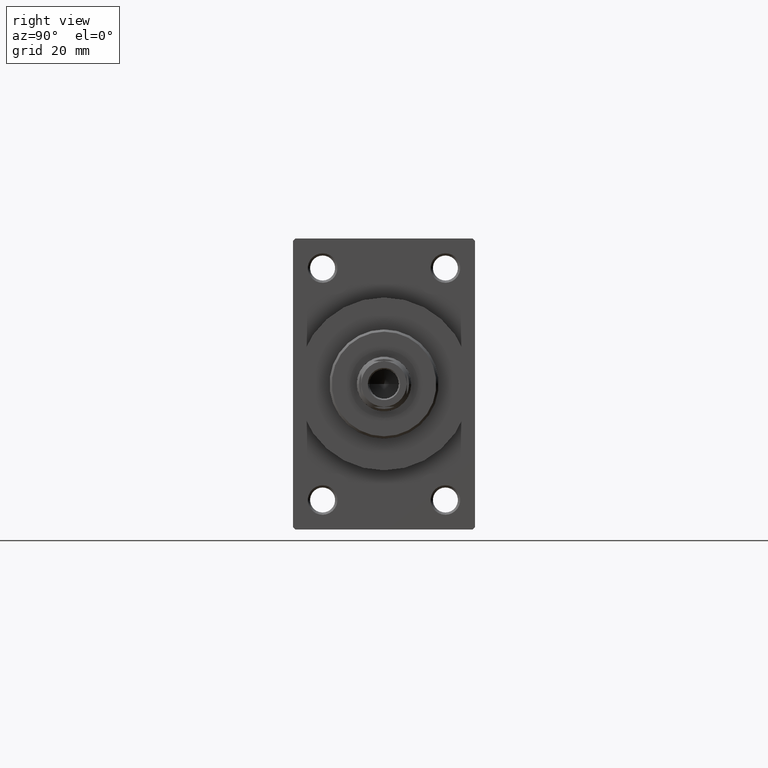
[diagram: clean part render]
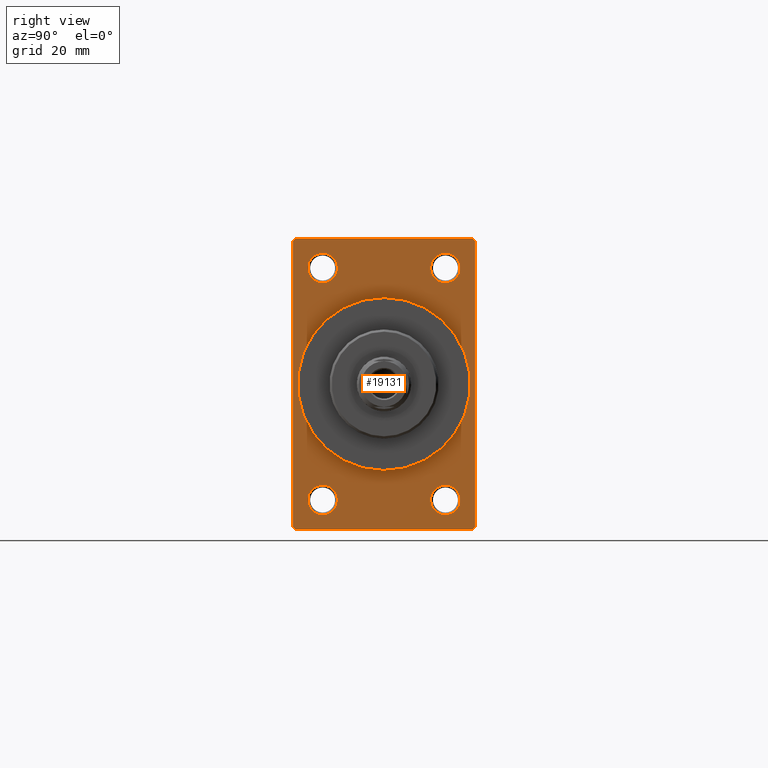
[diagram: same view with one face highlighted and labeled with its STEP entity id]
A machine part, right view. The second image highlights one B-rep face of the part: STEP entity #19131.
In plain terms, the highlighted planar face has unit normal (-1, 0, 0).
Its self-contained STEP definition (entity closure, byte-faithful):
#72 = DIRECTION ( 'NONE',  ( -1.000000000000000000, -0.000000000000000000, -0.000000000000000000 ) ) ;
#136 = LINE ( 'NONE', #834, #30318 ) ;
#491 = DIRECTION ( 'NONE',  ( -1.000000000000000000, -0.000000000000000000, -0.000000000000000000 ) ) ;
#504 = DIRECTION ( 'NONE',  ( 0.000000000000000000, 0.000000000000000000, -1.000000000000000000 ) ) ;
#636 = DIRECTION ( 'NONE',  ( 0.000000000000000000, 0.000000000000000000, 1.000000000000000000 ) ) ;
#639 = ORIENTED_EDGE ( 'NONE', *, *, #6985, .F. ) ;
#803 = CIRCLE ( 'NONE', #31978, 3.250000000000002665 ) ;
#834 = CARTESIAN_POINT ( 'NONE',  ( 109.0000000000000142, 20.00000000000000000, -32.00000000000000000 ) ) ;
#942 = ORIENTED_EDGE ( 'NONE', *, *, #31350, .T. ) ;
#951 = EDGE_LOOP ( 'NONE', ( #38351, #43736 ) ) ;
#1390 = VERTEX_POINT ( 'NONE', #21785 ) ;
#2607 = EDGE_LOOP ( 'NONE', ( #13065, #43282 ) ) ;
#2608 = DIRECTION ( 'NONE',  ( -0.000000000000000000, 0.000000000000000000, 1.000000000000000000 ) ) ;
#2789 = DIRECTION ( 'NONE',  ( -0.000000000000000000, 0.7071067811865474617, 0.7071067811865474617 ) ) ;
#2869 = LINE ( 'NONE', #6674, #31684 ) ;
#3507 = EDGE_CURVE ( 'NONE', #19250, #4148, #803, .T. ) ;
#3745 = DIRECTION ( 'NONE',  ( 0.000000000000000000, -1.000000000000000000, -1.734723475976807094E-16 ) ) ;
#3905 = EDGE_CURVE ( 'NONE', #32276, #8510, #22876, .T. ) ;
#3970 = CARTESIAN_POINT ( 'NONE',  ( 109.0000000000000142, 0.000000000000000000, 19.00000000000000000 ) ) ;
#4148 = VERTEX_POINT ( 'NONE', #44235 ) ;
#4152 = CARTESIAN_POINT ( 'NONE',  ( 109.0000000000000142, -19.49999999999998579, 31.99999999999999289 ) ) ;
#4704 = ORIENTED_EDGE ( 'NONE', *, *, #23346, .T. ) ;
#5133 = DIRECTION ( 'NONE',  ( -1.000000000000000000, -0.000000000000000000, -0.000000000000000000 ) ) ;
#5718 = CARTESIAN_POINT ( 'NONE',  ( 109.0000000000000142, 20.00000000000000000, 31.49999999999998579 ) ) ;
#6027 = DIRECTION ( 'NONE',  ( 0.000000000000000000, 0.7071067811865426878, -0.7071067811865524577 ) ) ;
#6171 = FACE_BOUND ( 'NONE', #8554, .T. ) ;
#6646 = FACE_BOUND ( 'NONE', #2607, .T. ) ;
#6674 = CARTESIAN_POINT ( 'NONE',  ( 109.0000000000000142, 20.00000000000000000, 32.00000000000000000 ) ) ;
#6985 = EDGE_CURVE ( 'NONE', #19389, #26418, #18443, .T. ) ;
#7106 = ORIENTED_EDGE ( 'NONE', *, *, #23407, .F. ) ;
#7146 = DIRECTION ( 'NONE',  ( 1.000000000000000000, 0.000000000000000000, 0.000000000000000000 ) ) ;
#7278 = DIRECTION ( 'NONE',  ( -1.000000000000000000, -0.000000000000000000, -0.000000000000000000 ) ) ;
#7313 = AXIS2_PLACEMENT_3D ( 'NONE', #19184, #5133, #16074 ) ;
#7774 = CARTESIAN_POINT ( 'NONE',  ( 109.0000000000000142, 20.00000000000000000, 32.00000000000000000 ) ) ;
#8225 = VERTEX_POINT ( 'NONE', #24523 ) ;
#8510 = VERTEX_POINT ( 'NONE', #20892 ) ;
#8554 = EDGE_LOOP ( 'NONE', ( #942, #30675 ) ) ;
#9569 = EDGE_CURVE ( 'NONE', #17859, #14299, #40536, .T. ) ;
#9601 = LINE ( 'NONE', #24109, #27256 ) ;
#9643 = CARTESIAN_POINT ( 'NONE',  ( 109.0000000000000142, -20.00000000000000000, 31.49999999999997868 ) ) ;
#10701 = FACE_BOUND ( 'NONE', #14236, .T. ) ;
#11233 = ORIENTED_EDGE ( 'NONE', *, *, #14128, .T. ) ;
#11770 = CIRCLE ( 'NONE', #38366, 3.249999999999961364 ) ;
#12707 = LINE ( 'NONE', #41295, #17268 ) ;
#13014 = VERTEX_POINT ( 'NONE', #9643 ) ;
#13065 = ORIENTED_EDGE ( 'NONE', *, *, #46768, .T. ) ;
#13906 = EDGE_CURVE ( 'NONE', #8225, #21773, #24679, .T. ) ;
#14071 = CARTESIAN_POINT ( 'NONE',  ( 109.0000000000000142, 19.49999999999998579, 32.00000000000000000 ) ) ;
#14128 = EDGE_CURVE ( 'NONE', #24617, #41589, #32552, .T. ) ;
#14236 = EDGE_LOOP ( 'NONE', ( #46917, #21896 ) ) ;
#14299 = VERTEX_POINT ( 'NONE', #18952 ) ;
#14348 = CARTESIAN_POINT ( 'NONE',  ( 109.0000000000000142, -13.50000000000000533, -25.49999999999999645 ) ) ;
#14956 = EDGE_CURVE ( 'NONE', #41589, #13014, #39522, .T. ) ;
#15042 = CARTESIAN_POINT ( 'NONE',  ( 109.0000000000000142, 13.49999999999999822, 25.50000000000000355 ) ) ;
#15210 = VERTEX_POINT ( 'NONE', #22460 ) ;
#15351 = DIRECTION ( 'NONE',  ( 0.000000000000000000, -1.000000000000000000, 0.000000000000000000 ) ) ;
#15585 = DIRECTION ( 'NONE',  ( 0.000000000000000000, 0.000000000000000000, -1.000000000000000000 ) ) ;
#16074 = DIRECTION ( 'NONE',  ( 0.000000000000000000, 0.000000000000000000, 1.000000000000000000 ) ) ;
#16775 = EDGE_CURVE ( 'NONE', #14299, #17859, #11770, .T. ) ;
#16800 = DIRECTION ( 'NONE',  ( 0.000000000000000000, 0.000000000000000000, 1.000000000000000000 ) ) ;
#16843 = ORIENTED_EDGE ( 'NONE', *, *, #27786, .F. ) ;
#17268 = VECTOR ( 'NONE', #15585, 1000.000000000000000 ) ;
#17859 = VERTEX_POINT ( 'NONE', #46304 ) ;
#18010 = AXIS2_PLACEMENT_3D ( 'NONE', #44215, #18735, #636 ) ;
#18083 = DIRECTION ( 'NONE',  ( -0.000000000000000000, -0.7071067811865474617, -0.7071067811865474617 ) ) ;
#18443 = CIRCLE ( 'NONE', #38169, 19.00000000000000000 ) ;
#18735 = DIRECTION ( 'NONE',  ( -1.000000000000000000, -0.000000000000000000, -0.000000000000000000 ) ) ;
#18952 = CARTESIAN_POINT ( 'NONE',  ( 109.0000000000000142, 13.49999999999999822, 22.25000000000004263 ) ) ;
#19089 = AXIS2_PLACEMENT_3D ( 'NONE', #33115, #491, #29538 ) ;
#19131 = ADVANCED_FACE ( 'NONE', ( #43313, #6171, #6646, #10701, #25209, #46644 ), #36166, .F. ) ;
#19184 = CARTESIAN_POINT ( 'NONE',  ( 109.0000000000000142, -13.50000000000000178, 25.50000000000000355 ) ) ;
#19250 = VERTEX_POINT ( 'NONE', #38490 ) ;
#19389 = VERTEX_POINT ( 'NONE', #3970 ) ;
#19528 = DIRECTION ( 'NONE',  ( -1.000000000000000000, -0.000000000000000000, -0.000000000000000000 ) ) ;
#20600 = CARTESIAN_POINT ( 'NONE',  ( 109.0000000000000142, -13.50000000000000178, 25.50000000000000355 ) ) ;
#20892 = CARTESIAN_POINT ( 'NONE',  ( 109.0000000000000142, 13.49999999999999822, -28.75000000000000000 ) ) ;
#21481 = VERTEX_POINT ( 'NONE', #5718 ) ;
#21773 = VERTEX_POINT ( 'NONE', #41258 ) ;
#21785 = CARTESIAN_POINT ( 'NONE',  ( 109.0000000000000142, -13.50000000000000178, 28.75000000000000355 ) ) ;
#21896 = ORIENTED_EDGE ( 'NONE', *, *, #9569, .T. ) ;
#21950 = CIRCLE ( 'NONE', #34873, 3.250000000000002665 ) ;
#22460 = CARTESIAN_POINT ( 'NONE',  ( 109.0000000000000142, -19.49999999999998579, -32.00000000000000000 ) ) ;
#22569 = EDGE_CURVE ( 'NONE', #13014, #34875, #12707, .T. ) ;
#22871 = CARTESIAN_POINT ( 'NONE',  ( 109.0000000000000142, -20.00000000000000000, -31.49999999999997868 ) ) ;
#22876 = CIRCLE ( 'NONE', #19089, 3.250000000000002665 ) ;
#23008 = DIRECTION ( 'NONE',  ( 0.000000000000000000, 0.000000000000000000, 1.000000000000000000 ) ) ;
#23293 = CIRCLE ( 'NONE', #18010, 3.250000000000002665 ) ;
#23346 = EDGE_CURVE ( 'NONE', #21481, #24617, #46698, .T. ) ;
#23407 = EDGE_CURVE ( 'NONE', #26418, #19389, #43931, .T. ) ;
#23826 = VECTOR ( 'NONE', #2789, 1000.000000000000114 ) ;
#23860 = VECTOR ( 'NONE', #18083, 1000.000000000000114 ) ;
#23996 = AXIS2_PLACEMENT_3D ( 'NONE', #32131, #28299, #2608 ) ;
#24109 = CARTESIAN_POINT ( 'NONE',  ( 109.0000000000000142, -19.49999999999998579, -32.00000000000000000 ) ) ;
#24523 = CARTESIAN_POINT ( 'NONE',  ( 109.0000000000000142, 19.49999999999998579, -32.00000000000000000 ) ) ;
#24617 = VERTEX_POINT ( 'NONE', #40831 ) ;
#24679 = LINE ( 'NONE', #42308, #23826 ) ;
#24757 = DIRECTION ( 'NONE',  ( 0.000000000000000000, 0.000000000000000000, -1.000000000000000000 ) ) ;
#25209 = FACE_BOUND ( 'NONE', #35050, .T. ) ;
#25442 = ORIENTED_EDGE ( 'NONE', *, *, #40376, .T. ) ;
#25693 = CARTESIAN_POINT ( 'NONE',  ( 109.0000000000000142, -20.00000000000000000, 31.49999999999997868 ) ) ;
#26418 = VERTEX_POINT ( 'NONE', #32948 ) ;
#27256 = VECTOR ( 'NONE', #6027, 1000.000000000000000 ) ;
#27740 = CARTESIAN_POINT ( 'NONE',  ( 109.0000000000000142, 13.49999999999999822, -22.24999999999999645 ) ) ;
#27786 = EDGE_CURVE ( 'NONE', #8225, #15210, #136, .T. ) ;
#28299 = DIRECTION ( 'NONE',  ( -1.000000000000000000, 0.000000000000000000, -0.000000000000000000 ) ) ;
#28421 = ORIENTED_EDGE ( 'NONE', *, *, #22569, .T. ) ;
#28589 = DIRECTION ( 'NONE',  ( 0.000000000000000000, -0.7071067811865474617, 0.7071067811865474617 ) ) ;
#29007 = VERTEX_POINT ( 'NONE', #33129 ) ;
#29274 = DIRECTION ( 'NONE',  ( 0.000000000000000000, 0.000000000000000000, -1.000000000000000000 ) ) ;
#29380 = AXIS2_PLACEMENT_3D ( 'NONE', #30013, #33588, #504 ) ;
#29538 = DIRECTION ( 'NONE',  ( 0.000000000000000000, 0.000000000000000000, 1.000000000000000000 ) ) ;
#29928 = VECTOR ( 'NONE', #3745, 1000.000000000000000 ) ;
#30013 = CARTESIAN_POINT ( 'NONE',  ( 109.0000000000000142, 0.000000000000000000, 0.000000000000000000 ) ) ;
#30131 = EDGE_CURVE ( 'NONE', #1390, #29007, #45301, .T. ) ;
#30318 = VECTOR ( 'NONE', #15351, 1000.000000000000000 ) ;
#30675 = ORIENTED_EDGE ( 'NONE', *, *, #3507, .T. ) ;
#30922 = EDGE_CURVE ( 'NONE', #21481, #21773, #2869, .T. ) ;
#31350 = EDGE_CURVE ( 'NONE', #4148, #19250, #23293, .T. ) ;
#31684 = VECTOR ( 'NONE', #24757, 1000.000000000000000 ) ;
#31978 = AXIS2_PLACEMENT_3D ( 'NONE', #14348, #72, #32937 ) ;
#32131 = CARTESIAN_POINT ( 'NONE',  ( 109.0000000000000142, 0.000000000000000000, 0.000000000000000000 ) ) ;
#32276 = VERTEX_POINT ( 'NONE', #27740 ) ;
#32409 = ORIENTED_EDGE ( 'NONE', *, *, #14956, .T. ) ;
#32552 = LINE ( 'NONE', #7774, #29928 ) ;
#32937 = DIRECTION ( 'NONE',  ( 0.000000000000000000, 0.000000000000000000, 1.000000000000000000 ) ) ;
#32948 = CARTESIAN_POINT ( 'NONE',  ( 109.0000000000000142, 2.326828918379970970E-15, -19.00000000000000000 ) ) ;
#32971 = AXIS2_PLACEMENT_3D ( 'NONE', #39889, #7278, #33454 ) ;
#33115 = CARTESIAN_POINT ( 'NONE',  ( 109.0000000000000142, 13.49999999999999822, -25.50000000000000000 ) ) ;
#33129 = CARTESIAN_POINT ( 'NONE',  ( 109.0000000000000142, -13.50000000000000178, 22.25000000000000000 ) ) ;
#33377 = DIRECTION ( 'NONE',  ( 0.000000000000000000, 0.000000000000000000, 1.000000000000000000 ) ) ;
#33454 = DIRECTION ( 'NONE',  ( 0.000000000000000000, 0.000000000000000000, 1.000000000000000000 ) ) ;
#33518 = DIRECTION ( 'NONE',  ( -1.000000000000000000, -0.000000000000000000, -0.000000000000000000 ) ) ;
#33588 = DIRECTION ( 'NONE',  ( 1.000000000000000000, 0.000000000000000000, 0.000000000000000000 ) ) ;
#34873 = AXIS2_PLACEMENT_3D ( 'NONE', #20600, #34902, #16800 ) ;
#34875 = VERTEX_POINT ( 'NONE', #22871 ) ;
#34902 = DIRECTION ( 'NONE',  ( -1.000000000000000000, -0.000000000000000000, -0.000000000000000000 ) ) ;
#34948 = EDGE_LOOP ( 'NONE', ( #28421, #25442, #16843, #43297, #38483, #4704, #11233, #32409 ) ) ;
#35050 = EDGE_LOOP ( 'NONE', ( #639, #7106 ) ) ;
#36166 = PLANE ( 'NONE',  #23996 ) ;
#36247 = EDGE_CURVE ( 'NONE', #29007, #1390, #21950, .T. ) ;
#38169 = AXIS2_PLACEMENT_3D ( 'NONE', #43577, #7146, #29274 ) ;
#38351 = ORIENTED_EDGE ( 'NONE', *, *, #36247, .T. ) ;
#38366 = AXIS2_PLACEMENT_3D ( 'NONE', #15042, #19528, #33377 ) ;
#38483 = ORIENTED_EDGE ( 'NONE', *, *, #30922, .F. ) ;
#38490 = CARTESIAN_POINT ( 'NONE',  ( 109.0000000000000142, -13.50000000000000533, -22.24999999999999289 ) ) ;
#39522 = LINE ( 'NONE', #25693, #23860 ) ;
#39889 = CARTESIAN_POINT ( 'NONE',  ( 109.0000000000000142, 13.49999999999999822, 25.50000000000000355 ) ) ;
#40376 = EDGE_CURVE ( 'NONE', #34875, #15210, #9601, .T. ) ;
#40536 = CIRCLE ( 'NONE', #32971, 3.249999999999961364 ) ;
#40831 = CARTESIAN_POINT ( 'NONE',  ( 109.0000000000000142, 19.49999999999998579, 32.00000000000000000 ) ) ;
#41258 = CARTESIAN_POINT ( 'NONE',  ( 109.0000000000000142, 20.00000000000000000, -31.49999999999998579 ) ) ;
#41295 = CARTESIAN_POINT ( 'NONE',  ( 109.0000000000000142, -20.00000000000000000, 31.99999999999999289 ) ) ;
#41350 = CARTESIAN_POINT ( 'NONE',  ( 109.0000000000000142, 13.49999999999999822, -25.50000000000000000 ) ) ;
#41589 = VERTEX_POINT ( 'NONE', #4152 ) ;
#41632 = VECTOR ( 'NONE', #28589, 1000.000000000000114 ) ;
#41920 = CIRCLE ( 'NONE', #42714, 3.250000000000002665 ) ;
#42308 = CARTESIAN_POINT ( 'NONE',  ( 109.0000000000000142, 20.00000000000000000, -31.49999999999998579 ) ) ;
#42714 = AXIS2_PLACEMENT_3D ( 'NONE', #41350, #33518, #23008 ) ;
#43282 = ORIENTED_EDGE ( 'NONE', *, *, #3905, .T. ) ;
#43297 = ORIENTED_EDGE ( 'NONE', *, *, #13906, .T. ) ;
#43313 = FACE_BOUND ( 'NONE', #951, .T. ) ;
#43577 = CARTESIAN_POINT ( 'NONE',  ( 109.0000000000000142, 0.000000000000000000, 0.000000000000000000 ) ) ;
#43736 = ORIENTED_EDGE ( 'NONE', *, *, #30131, .T. ) ;
#43931 = CIRCLE ( 'NONE', #29380, 19.00000000000000000 ) ;
#44215 = CARTESIAN_POINT ( 'NONE',  ( 109.0000000000000142, -13.50000000000000533, -25.49999999999999645 ) ) ;
#44235 = CARTESIAN_POINT ( 'NONE',  ( 109.0000000000000142, -13.50000000000000533, -28.74999999999999645 ) ) ;
#45301 = CIRCLE ( 'NONE', #7313, 3.250000000000002665 ) ;
#46304 = CARTESIAN_POINT ( 'NONE',  ( 109.0000000000000142, 13.49999999999999822, 28.74999999999996803 ) ) ;
#46644 = FACE_OUTER_BOUND ( 'NONE', #34948, .T. ) ;
#46698 = LINE ( 'NONE', #14071, #41632 ) ;
#46768 = EDGE_CURVE ( 'NONE', #8510, #32276, #41920, .T. ) ;
#46917 = ORIENTED_EDGE ( 'NONE', *, *, #16775, .T. ) ;